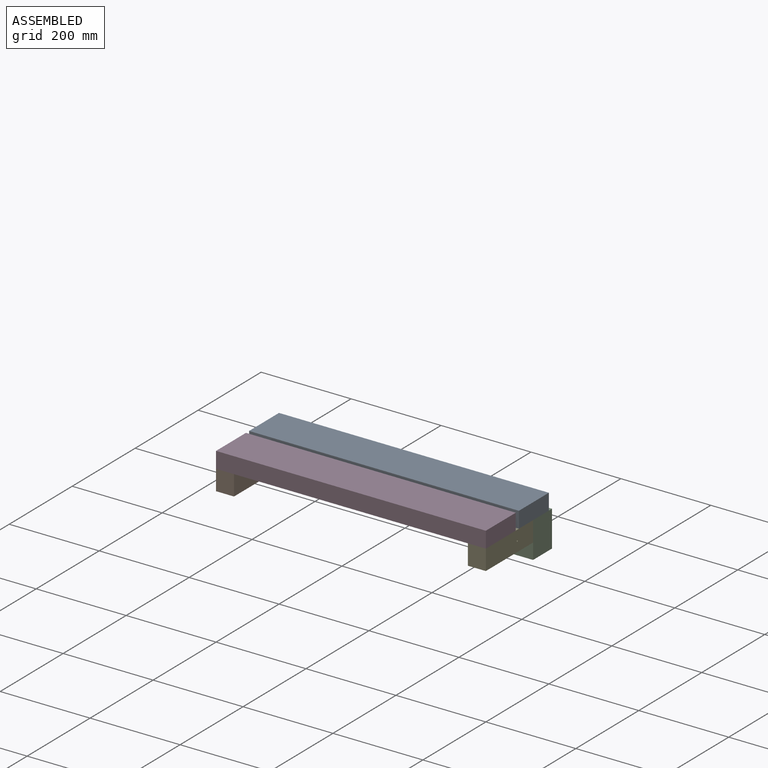
[diagram: assembled view]
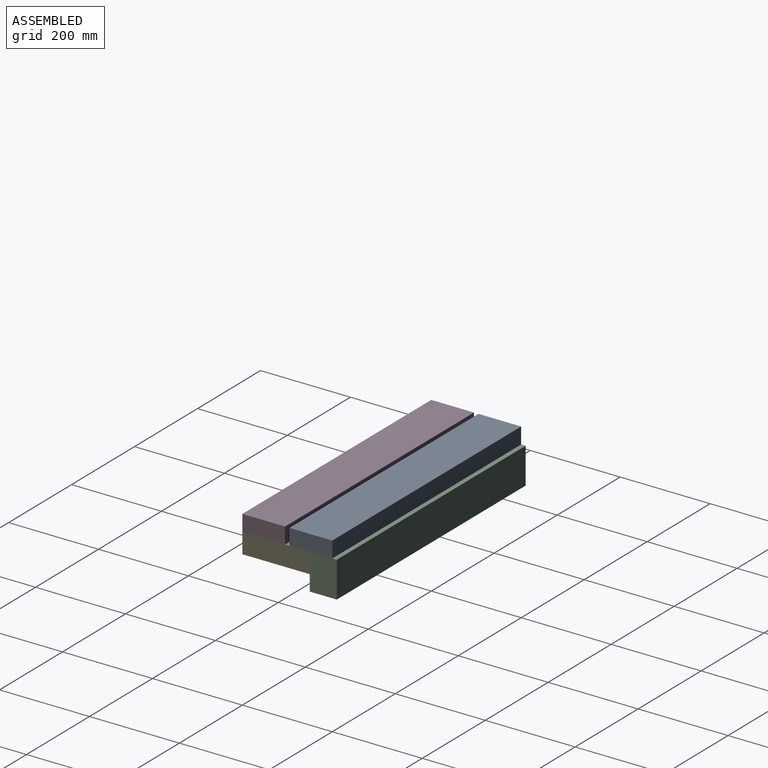
[diagram: assembled view, second angle]
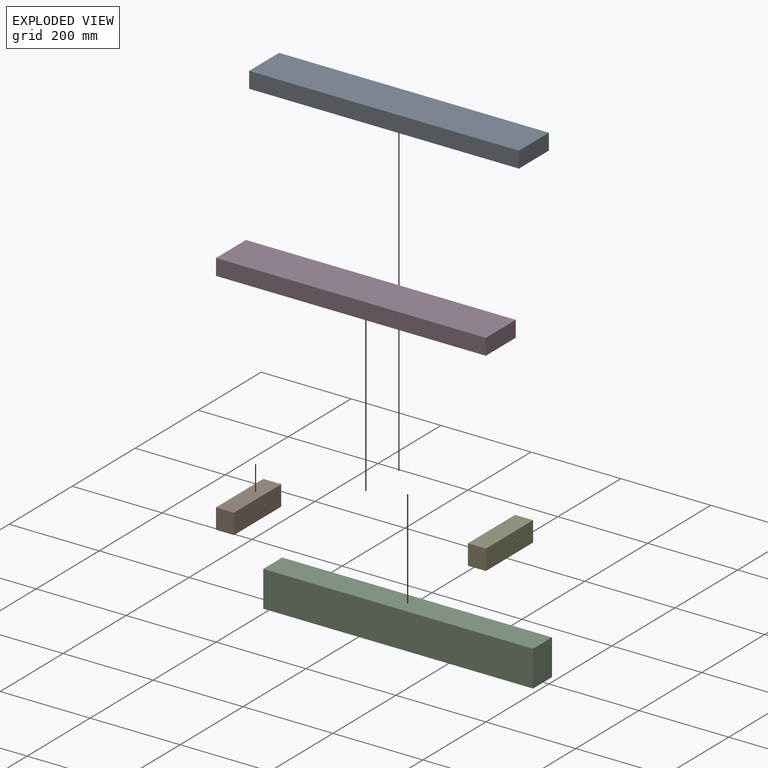
[diagram: exploded view]
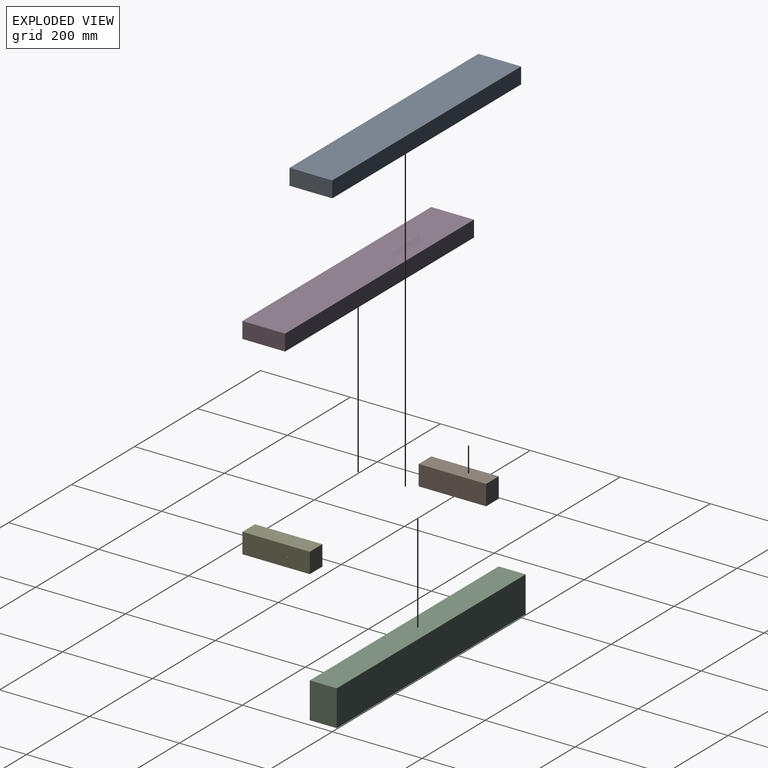
[diagram: exploded view, second angle]
ASSEMBLY  parts=5 mates=4
PART A: 6 faces, bbox 600x95x36 mm
  f0: plane 600x36mm, normal (0,1,0), area 21600mm2, adj f1,f3,f4,f5
  f1: plane 600x95mm, normal (0,0,1), area 57000mm2, adj f0,f2,f4,f5
  f2: plane 600x36mm, normal (0,-1,0), area 21600mm2, adj f1,f3,f4,f5
  f3: plane 600x95mm, normal (0,0,-1), area 57000mm2, adj f0,f2,f4,f5
  f4: plane 95x36mm, normal (1,0,0), area 3420mm2, adj f0,f1,f2,f3
  f5: plane 95x36mm, normal (-1,0,0), area 3420mm2, adj f0,f1,f2,f3
PART B: 7 faces, bbox 40x150x45 mm
  f0: plane 150x40mm, normal (0,0,-1), area 6000mm2, adj f1,f3,f4,f5
  f1: plane 150x45mm, normal (1,0,0), area 6742.9mm2, adj f0,f2,f4,f5,f6
  f2: plane 150x40mm, normal (0,0,1), area 6000mm2, adj f1,f3,f4,f5
  f3: plane 150x45mm, normal (-1,0,0), area 6742.9mm2, adj f0,f2,f4,f5,f6
  f4: plane 45x40mm, normal (0,-1,0), area 1800mm2, adj f0,f1,f2,f3
  f5: plane 45x40mm, normal (0,1,0), area 1800mm2, adj f0,f1,f2,f3
  f6: cylinder r=1.5mm len=40mm, axis (1,0,0), area 377mm2, adj f1,f3
PART C: 6 faces, bbox 60x600x80 mm
  f0: plane 600x80mm, normal (-1,0,0), area 48000mm2, adj f1,f3,f4,f5
  f1: plane 600x60mm, normal (0,0,-1), area 36000mm2, adj f0,f2,f4,f5
  f2: plane 600x80mm, normal (1,0,0), area 48000mm2, adj f1,f3,f4,f5
  f3: plane 600x60mm, normal (0,0,1), area 36000mm2, adj f0,f2,f4,f5
  f4: plane 80x60mm, normal (0,1,0), area 4800mm2, adj f0,f1,f2,f3
  f5: plane 80x60mm, normal (0,-1,0), area 4800mm2, adj f0,f1,f2,f3
PART D: same geometry as A
PART E: same geometry as B
PLACE A t=(0,152.5,63)mm
PLACE B t=(20,150,22.5)mm fixed
PLACE C rot(axis=(0,0,-1),90deg) t=(0,210,-35)mm
PLACE D t=(0,47.5,63)mm
PLACE E t=(580,150,22.5)mm
MATE fastened C.f3 <-> B.f2  axis (0,0,1) through (0,150,45)mm
MATE fastened A.f3 <-> D.f3  axis (0,0,1) through (0,105,45)mm
MATE fastened B.f2 <-> D.f3  axis (0,0,1) through (0,0,45)mm
MATE fastened E.f2 <-> C.f3  axis (0,0,1) through (600,150,45)mm
